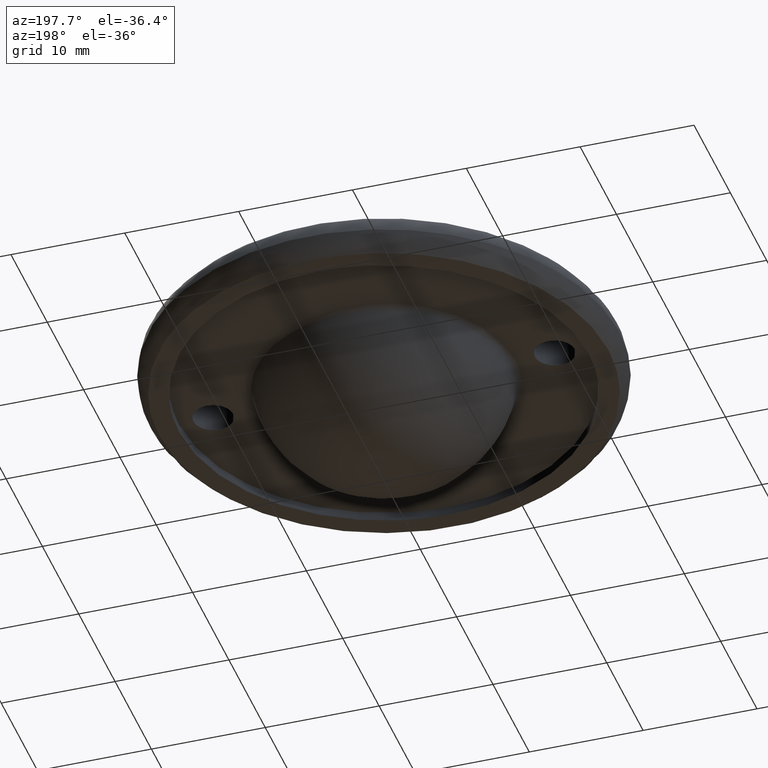
[diagram: clean part render]
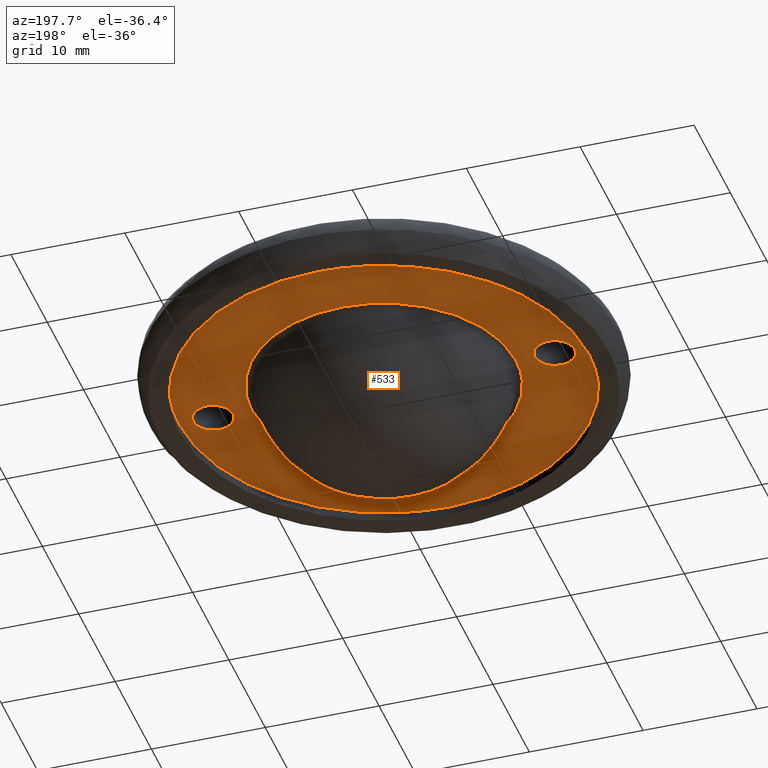
[diagram: same view with one face highlighted and labeled with its STEP entity id]
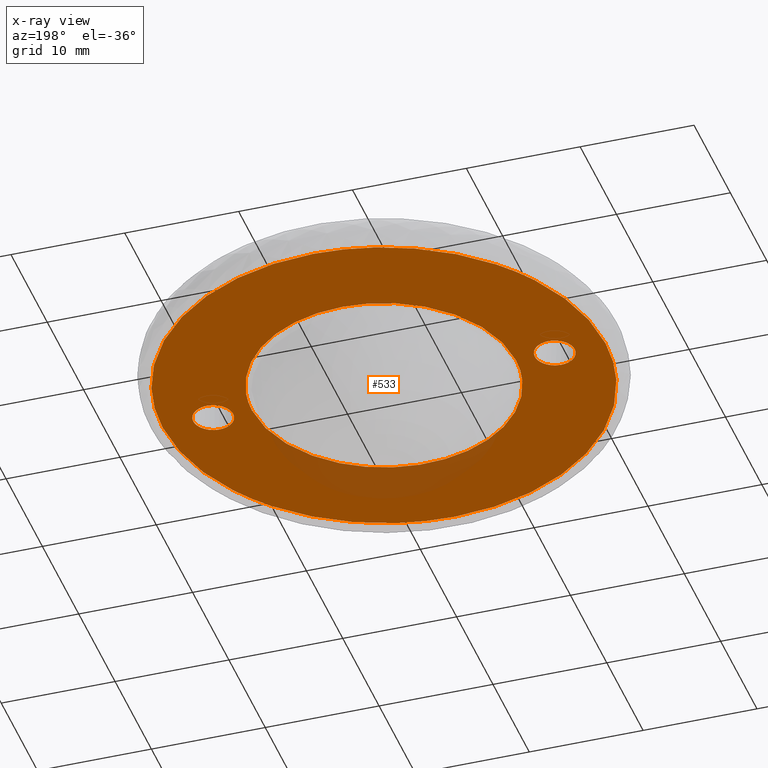
[diagram: x-ray of the same camera — body ghosted, the highlighted face saturated]
A machine part, auxiliary view. The second image highlights one B-rep face of the part: STEP entity #533.
The next image is the same camera in x-ray: the body ghosted, the highlighted face saturated — about 9% of this face is hidden behind the body in this view.
In plain terms, the highlighted face is a freeform B-spline surface patch.
Its self-contained STEP definition (entity closure, byte-faithful):
#136=CARTESIAN_POINT('',(11.267688184956871,-2.742599757114673,0.800000000000000));
#137=VERTEX_POINT('',#136);
#148=CARTESIAN_POINT('',(-11.596665494977840,0.0,0.800000000000000));
#149=VERTEX_POINT('',#148);
#150=CARTESIAN_POINT('',(11.267688184956871,-2.742599757114673,0.800000000000000));
#151=CARTESIAN_POINT('',(11.112248492341751,-3.381445969887310,0.800000000000000));
#152=CARTESIAN_POINT('',(10.741247187765630,-4.486584162898901,0.799999999999997));
#153=CARTESIAN_POINT('',(10.049455958956480,-5.834888732720091,0.800000000000005));
#154=CARTESIAN_POINT('',(9.238286050969169,-7.060696480605282,0.799999999999995));
#155=CARTESIAN_POINT('',(8.250229157700595,-8.211778813633607,0.799999999999999));
#156=CARTESIAN_POINT('',(6.951927979301177,-9.330441996577619,0.800000000000003));
#157=CARTESIAN_POINT('',(5.490127025447241,-10.266341338136661,0.800000000000003));
#158=CARTESIAN_POINT('',(3.881223760624133,-10.977906943386859,0.799999999999997));
#159=CARTESIAN_POINT('',(2.352328845019625,-11.385370598962860,0.800000000000006));
#160=CARTESIAN_POINT('',(1.026714308146248,-11.570246196785810,0.799999999999985));
#161=CARTESIAN_POINT('',(-0.135453233945206,-11.616019219747670,0.800000000000027));
#162=CARTESIAN_POINT('',(-1.559050666477007,-11.526700584526569,0.799999999999987));
#163=CARTESIAN_POINT('',(-3.176765644966813,-11.205662199319461,0.799999999999996));
#164=CARTESIAN_POINT('',(-4.844956211138731,-10.582468399470059,0.800000000000002));
#165=CARTESIAN_POINT('',(-6.383022327875375,-9.732380671445867,0.799999999999999));
#166=CARTESIAN_POINT('',(-7.885584049766017,-8.584682082746635,0.800000000000000));
#167=CARTESIAN_POINT('',(-9.106629202886268,-7.254716844804547,0.800000000000000));
#168=CARTESIAN_POINT('',(-9.948782102046261,-5.995753651517820,0.800000000000001));
#169=CARTESIAN_POINT('',(-10.527372103306330,-4.912135083802987,0.800000000000002));
#170=CARTESIAN_POINT('',(-10.951373721718090,-3.875812777944391,0.799999999999986));
#171=CARTESIAN_POINT('',(-11.440851123940019,-2.213428363868307,0.800000000000029));
#172=CARTESIAN_POINT('',(-11.596921771477611,-0.942417473568141,0.800000000000007));
#173=CARTESIAN_POINT('',(-11.596665494977840,0.0,0.800000000000000));
#174=B_SPLINE_CURVE_WITH_KNOTS('',3,(#150,#151,#152,#153,#154,#155,#156,#157,#158,#159,#160,#161,#162,#163,#164,#165,#166,#167,#168,#169,#170,#171,#172,#173),.UNSPECIFIED.,.F.,.U.,(4,1,1,1,1,1,1,1,1,1,1,1,1,1,1,1,1,1,1,1,1,4),(0.000000080051386,1.972447380855684,3.484643062393829,4.536624168183064,6.377598400557055,8.021311448885250,9.665027405255646,11.571732624307510,13.281213617543051,14.398937076779770,15.582406434931920,16.765887572353730,18.672558644462121,20.513513887869721,22.091476754289690,23.932433592227859,26.167893045869821,27.482861541426661,28.469101292874701,29.849808886476541,30.836051918699170,33.663212273692949),.UNSPECIFIED.);
#175=EDGE_CURVE('',#137,#149,#174,.T.);
#177=CARTESIAN_POINT('',(-11.267688184956871,2.742599757114676,0.800000000000000));
#178=VERTEX_POINT('',#177);
#179=CARTESIAN_POINT('',(-11.596665494977840,0.0,0.800000000000000));
#180=CARTESIAN_POINT('',(-11.596758917441310,0.922952473692589,0.799999999999998));
#181=CARTESIAN_POINT('',(-11.486121971228950,1.845860284297700,0.800000000000001));
#182=CARTESIAN_POINT('',(-11.267688184956871,2.742599757114676,0.800000000000000));
#183=B_SPLINE_CURVE_WITH_KNOTS('',3,(#179,#180,#181,#182),.UNSPECIFIED.,.F.,.U.,(4,4),(7.651138E-010,2.768838355447540),.UNSPECIFIED.);
#184=EDGE_CURVE('',#149,#178,#183,.T.);
#232=CARTESIAN_POINT('',(11.596665494977840,0.0,0.800000000000000));
#233=VERTEX_POINT('',#232);
#234=CARTESIAN_POINT('',(-11.267688184956871,2.742599757114676,0.800000000000000));
#235=CARTESIAN_POINT('',(-11.117425790407029,3.360141394025577,0.799999999999999));
#236=CARTESIAN_POINT('',(-10.749663549196571,4.466069297660289,0.800000000000001));
#237=CARTESIAN_POINT('',(-10.051600861857940,5.836167740597501,0.800000000000005));
#238=CARTESIAN_POINT('',(-9.321936092482066,6.931967277885200,0.799999999999992));
#239=CARTESIAN_POINT('',(-8.428385448142295,8.015796709920750,0.800000000000002));
#240=CARTESIAN_POINT('',(-7.106963055721247,9.242144811809867,0.799999999999998));
#241=CARTESIAN_POINT('',(-5.381980157941297,10.346580141489010,0.800000000000015));
#242=CARTESIAN_POINT('',(-3.588164947602236,11.073815991673230,0.799999999999974));
#243=CARTESIAN_POINT('',(-2.092999864688739,11.431690896309799,0.800000000000007));
#244=CARTESIAN_POINT('',(-0.503084666142127,11.626019263661110,0.799999999999989));
#245=CARTESIAN_POINT('',(1.235513949701093,11.590972879879910,0.800000000000040));
#246=CARTESIAN_POINT('',(3.004196047945836,11.239870516653831,0.799999999999982));
#247=CARTESIAN_POINT('',(4.662790490986287,10.662831991946090,0.800000000000012));
#248=CARTESIAN_POINT('',(6.087795399487681,9.922050232079256,0.799999999999997));
#249=CARTESIAN_POINT('',(7.489872384302782,8.900503177571268,0.800000000000001));
#250=CARTESIAN_POINT('',(8.598819588791349,7.834382563625780,0.800000000000001));
#251=CARTESIAN_POINT('',(9.661128464545163,6.490812096270822,0.800000000000001));
#252=CARTESIAN_POINT('',(10.439269837559040,5.136813413413643,0.800000000000000));
#253=CARTESIAN_POINT('',(11.053931479036381,3.609771964269013,0.799999999999998));
#254=CARTESIAN_POINT('',(11.481005138053559,1.972431468687135,0.800000000000020));
#255=CARTESIAN_POINT('',(11.596733105224031,0.701317971787931,0.799999999999931));
#256=CARTESIAN_POINT('',(11.596665494977840,0.0,0.800000000000000));
#257=B_SPLINE_CURVE_WITH_KNOTS('',3,(#234,#235,#236,#237,#238,#239,#240,#241,#242,#243,#244,#245,#246,#247,#248,#249,#250,#251,#252,#253,#254,#255,#256),.UNSPECIFIED.,.F.,.U.,(4,1,1,1,1,1,1,1,1,1,1,1,1,1,1,1,1,1,1,1,4),(0.000000080051663,1.906672830287072,3.484643062393268,4.602383427606995,5.851611709778535,7.692567736422731,9.993768260078461,11.966232531355439,13.478460664467439,14.596183505841120,16.765887572352138,18.672558644460459,19.987528689709549,22.025717767077829,23.472196533849939,25.181661202057001,26.628128702097090,28.600593351573028,29.849808886476492,31.559263782510548,33.663212273692977),.UNSPECIFIED.);
#258=EDGE_CURVE('',#178,#233,#257,.T.);
#260=CARTESIAN_POINT('',(11.596665494977840,0.0,0.800000000000000));
#261=CARTESIAN_POINT('',(11.596754837340610,-0.922952478419905,0.800000000000000));
#262=CARTESIAN_POINT('',(11.486127385504259,-1.845860076243724,0.800000000000001));
#263=CARTESIAN_POINT('',(11.267688184956871,-2.742599757114673,0.800000000000000));
#264=B_SPLINE_CURVE_WITH_KNOTS('',3,(#260,#261,#262,#263),.UNSPECIFIED.,.F.,.U.,(4,4),(7.650174E-010,2.768838355447538),.UNSPECIFIED.);
#265=EDGE_CURVE('',#233,#137,#264,.T.);
#271=CARTESIAN_POINT('',(21.407060906250440,-21.407060906250418,0.800000000000000));
#272=CARTESIAN_POINT('',(-21.407061950312841,-21.407060906250418,0.800000000000000));
#273=CARTESIAN_POINT('',(21.407060906250440,21.407061950312819,0.800000000000000));
#274=CARTESIAN_POINT('',(-21.407061950312841,21.407061950312819,0.800000000000000));
#275=B_SPLINE_SURFACE_WITH_KNOTS('',1,1,((#271,#273),(#272,#274)),.UNSPECIFIED.,.F.,.F.,.U.,(2,2),(2,2),(0.0,42.814122856563280),(0.0,42.814122856563252),.UNSPECIFIED.);
#276=CARTESIAN_POINT('',(-19.462733868256699,0.0,0.800000000000000));
#277=VERTEX_POINT('',#276);
#278=CARTESIAN_POINT('',(-14.117768219263500,13.397261776138860,0.800000000003066));
#279=VERTEX_POINT('',#278);
#280=CARTESIAN_POINT('',(-19.462733868256699,0.0,0.800000000000000));
#281=CARTESIAN_POINT('',(-19.462777209063020,0.923530993554935,0.800000000000210));
#282=CARTESIAN_POINT('',(-19.363941431147300,2.308810455355918,0.800000000000528));
#283=CARTESIAN_POINT('',(-18.975457257358180,4.468931619584362,0.800000000001023));
#284=CARTESIAN_POINT('',(-18.481983096943381,6.212527045208513,0.800000000001423));
#285=CARTESIAN_POINT('',(-17.739850434165739,8.072654507711784,0.800000000001845));
#286=CARTESIAN_POINT('',(-16.847239107297451,9.823211266045684,0.800000000002254));
#287=CARTESIAN_POINT('',(-15.640750207071511,11.659582255019410,0.800000000002663));
#288=CARTESIAN_POINT('',(-14.647544639642749,12.839021240920520,0.800000000002943));
#289=CARTESIAN_POINT('',(-14.117768219263500,13.397261776138860,0.800000000003066));
#290=B_SPLINE_CURVE_WITH_KNOTS('',3,(#280,#281,#282,#283,#284,#285,#286,#287,#288,#289),.UNSPECIFIED.,.F.,.U.,(4,1,1,1,1,1,1,4),(4.645193E-009,2.770588507161037,4.155887450893658,6.580155285196819,8.196328546753078,10.158830418493620,12.467659815715249,14.776483827311161),.UNSPECIFIED.);
#291=EDGE_CURVE('',#277,#279,#290,.T.);
#292=ORIENTED_EDGE('',*,*,#291,.T.);
#293=CARTESIAN_POINT('',(0.000000723947979,19.462733868256691,0.800000000000000));
#294=VERTEX_POINT('',#293);
#295=CARTESIAN_POINT('',(-14.117768219263500,13.397261776138860,0.800000000003066));
#296=CARTESIAN_POINT('',(-13.325024059529250,14.232793262436010,0.800000000002896));
#297=CARTESIAN_POINT('',(-11.807366663205080,15.571210124711101,0.800000000002562));
#298=CARTESIAN_POINT('',(-9.200084210443604,17.233149143765871,0.800000000001998));
#299=CARTESIAN_POINT('',(-6.861906791695517,18.273010773817241,0.800000000001493));
#300=CARTESIAN_POINT('',(-4.414192697635750,18.999381190379712,0.800000000000960));
#301=CARTESIAN_POINT('',(-2.262380010376466,19.378423401008980,0.800000000000493));
#302=CARTESIAN_POINT('',(-0.699278577927698,19.462744159271789,0.800000000000146));
#303=CARTESIAN_POINT('',(0.000000723947979,19.462733868256691,0.800000000000000));
#304=B_SPLINE_CURVE_WITH_KNOTS('',3,(#295,#296,#297,#298,#299,#300,#301,#302,#303),.UNSPECIFIED.,.F.,.U.,(4,1,1,1,1,1,4),(3.738451E-009,3.455276450489064,6.046742164047913,9.255208237867617,11.106247880486340,13.697714106534150,15.795555742761740),.UNSPECIFIED.);
#305=EDGE_CURVE('',#279,#294,#304,.T.);
#306=ORIENTED_EDGE('',*,*,#305,.T.);
#307=CARTESIAN_POINT('',(19.462733868256699,0.0,0.800000000000000));
#308=VERTEX_POINT('',#307);
#309=CARTESIAN_POINT('',(0.000000723947979,19.462733868256691,0.800000000000000));
#310=CARTESIAN_POINT('',(1.114606324708212,19.462816726786912,0.800000000000000));
#311=CARTESIAN_POINT('',(2.866090146232754,19.311857108848638,0.799999999999999));
#312=CARTESIAN_POINT('',(5.199294333822421,18.787860957389690,0.800000000000003));
#313=CARTESIAN_POINT('',(7.356417284532988,18.075318521065459,0.799999999999997));
#314=CARTESIAN_POINT('',(9.482701014953420,17.061657619145489,0.800000000000000));
#315=CARTESIAN_POINT('',(11.420935707546789,15.800623281959281,0.799999999999999));
#316=CARTESIAN_POINT('',(13.252073897883040,14.325934517859061,0.800000000000000));
#317=CARTESIAN_POINT('',(14.776278234040589,12.744549234581649,0.800000000000003));
#318=CARTESIAN_POINT('',(16.116358804414261,10.960525752949120,0.799999999999987));
#319=CARTESIAN_POINT('',(17.266344650214201,9.094350152577283,0.800000000000037));
#320=CARTESIAN_POINT('',(18.290232885957838,6.840717698703089,0.799999999999992));
#321=CARTESIAN_POINT('',(19.020003566367560,4.352671212116771,0.799999999999993));
#322=CARTESIAN_POINT('',(19.387921212514691,2.109776785902304,0.800000000000004));
#323=CARTESIAN_POINT('',(19.462745459942841,0.676718807012300,0.800000000000000));
#324=CARTESIAN_POINT('',(19.462733868256699,0.0,0.800000000000000));
#325=B_SPLINE_CURVE_WITH_KNOTS('',3,(#309,#310,#311,#312,#313,#314,#315,#316,#317,#318,#319,#320,#321,#322,#323,#324),.UNSPECIFIED.,.F.,.U.,(4,1,1,1,1,1,1,1,1,1,1,1,1,4),(0.000000012302706,3.343803374949783,5.254561959616996,7.165320466832366,10.150873258505900,12.300479181269930,14.091802297875390,17.196759165892740,18.868667602751149,20.779426014539212,23.764985520653291,26.272852948729280,28.541879216823592,30.572038420194261),.UNSPECIFIED.);
#326=EDGE_CURVE('',#294,#308,#325,.T.);
#327=ORIENTED_EDGE('',*,*,#326,.T.);
#328=CARTESIAN_POINT('',(14.117768219263370,-13.397261776138730,0.800000000003066));
#329=VERTEX_POINT('',#328);
#330=CARTESIAN_POINT('',(19.462733868256699,0.0,0.800000000000000));
#331=CARTESIAN_POINT('',(19.462778579618490,-0.923530821805496,0.800000000000211));
#332=CARTESIAN_POINT('',(19.352960364436619,-2.462731968911517,0.800000000000567));
#333=CARTESIAN_POINT('',(18.938671639178310,-4.619150510000654,0.800000000001054));
#334=CARTESIAN_POINT('',(18.424879010804911,-6.355609564858079,0.800000000001455));
#335=CARTESIAN_POINT('',(17.682783096060462,-8.215751804504386,0.800000000001879));
#336=CARTESIAN_POINT('',(16.840517057600689,-9.820193116663523,0.800000000002253));
#337=CARTESIAN_POINT('',(15.635387210770631,-11.654505736118329,0.800000000002666));
#338=CARTESIAN_POINT('',(14.753516395524040,-12.727385802460420,0.800000000002917));
#339=CARTESIAN_POINT('',(14.117768219263370,-13.397261776138730,0.800000000003066));
#340=B_SPLINE_CURVE_WITH_KNOTS('',3,(#330,#331,#332,#333,#334,#335,#336,#337,#338,#339),.UNSPECIFIED.,.F.,.U.,(4,1,1,1,1,1,1,4),(4.644200E-009,2.770588507160678,4.617653413463589,6.580155285197083,8.196328546753453,10.620596381063320,12.005895324796651,14.776483827311081),.UNSPECIFIED.);
#341=EDGE_CURVE('',#308,#329,#340,.T.);
#342=ORIENTED_EDGE('',*,*,#341,.T.);
#343=CARTESIAN_POINT('',(-0.000000723948708,-19.462733868256681,0.800000000000000));
#344=VERTEX_POINT('',#343);
#345=CARTESIAN_POINT('',(14.117768219263370,-13.397261776138730,0.800000000003066));
#346=CARTESIAN_POINT('',(13.240108615901280,-14.322341147986149,0.800000000002877));
#347=CARTESIAN_POINT('',(11.583368113699560,-15.755570374367711,0.800000000002514));
#348=CARTESIAN_POINT('',(9.221273325678084,-17.188408234193972,0.800000000002002));
#349=CARTESIAN_POINT('',(7.238711917409590,-18.100393055106519,0.800000000001572));
#350=CARTESIAN_POINT('',(5.447810208331852,-18.719579858110770,0.800000000001183));
#351=CARTESIAN_POINT('',(3.002754780532599,-19.295790868177640,0.800000000000654));
#352=CARTESIAN_POINT('',(1.192902052925375,-19.462864251436400,0.800000000000257));
#353=CARTESIAN_POINT('',(-0.000000723948708,-19.462733868256681,0.800000000000000));
#354=B_SPLINE_CURVE_WITH_KNOTS('',3,(#345,#346,#347,#348,#349,#350,#351,#352,#353),.UNSPECIFIED.,.F.,.U.,(4,1,1,1,1,1,4),(3.738256E-009,3.825486092759752,6.540347703668788,8.267977682154680,10.365831080092059,12.216876042408851,15.795555742762410),.UNSPECIFIED.);
#355=EDGE_CURVE('',#329,#344,#354,.T.);
#356=ORIENTED_EDGE('',*,*,#355,.T.);
#357=CARTESIAN_POINT('',(-0.000000723948708,-19.462733868256681,0.800000000000000));
#358=CARTESIAN_POINT('',(-0.796141512694437,-19.462756444052371,0.800000000000001));
#359=CARTESIAN_POINT('',(-2.229195314403920,-19.374679308010609,0.799999999999999));
#360=CARTESIAN_POINT('',(-4.310424902529432,-19.013551909794220,0.799999999999998));
#361=CARTESIAN_POINT('',(-6.229667860847442,-18.476086571250150,0.800000000000006));
#362=CARTESIAN_POINT('',(-8.045454976741864,-17.756387408508960,0.799999999999991));
#363=CARTESIAN_POINT('',(-9.816862792019398,-16.844202813618999,0.800000000000006));
#364=CARTESIAN_POINT('',(-11.654896922708300,-15.648468247020221,0.799999999999994));
#365=CARTESIAN_POINT('',(-13.333960420840629,-14.235646203078220,0.800000000000002));
#366=CARTESIAN_POINT('',(-14.840340909478630,-12.643657246362880,0.800000000000000));
#367=CARTESIAN_POINT('',(-16.251796582447771,-10.812067677770800,0.800000000000000));
#368=CARTESIAN_POINT('',(-17.511655143532739,-8.635095851024721,0.800000000000000));
#369=CARTESIAN_POINT('',(-18.579208453200948,-6.012377427956591,0.800000000000000));
#370=CARTESIAN_POINT('',(-19.287542987641931,-3.184563603173815,0.800000000000000));
#371=CARTESIAN_POINT('',(-19.462813259273400,-1.074796736304379,0.800000000000000));
#372=CARTESIAN_POINT('',(-19.462733868256699,0.0,0.800000000000000));
#373=B_SPLINE_CURVE_WITH_KNOTS('',3,(#357,#358,#359,#360,#361,#362,#363,#364,#365,#366,#367,#368,#369,#370,#371,#372),.UNSPECIFIED.,.F.,.U.,(4,1,1,1,1,1,1,1,1,1,1,1,1,4),(0.000000012309620,2.388424220198743,4.299182744802181,6.329364458028771,8.359542088834029,10.150873258507589,12.300479181270790,14.927771601112550,16.719067931270018,18.868667602751390,21.854228345098431,24.242673835306672,27.347654194451540,30.572038420193842),.UNSPECIFIED.);
#374=EDGE_CURVE('',#344,#277,#373,.T.);
#375=ORIENTED_EDGE('',*,*,#374,.T.);
#376=EDGE_LOOP('',(#292,#306,#327,#342,#356,#375));
#377=FACE_OUTER_BOUND('',#376,.T.);
#378=ORIENTED_EDGE('',*,*,#184,.F.);
#379=ORIENTED_EDGE('',*,*,#175,.F.);
#380=ORIENTED_EDGE('',*,*,#265,.F.);
#381=ORIENTED_EDGE('',*,*,#258,.F.);
#382=EDGE_LOOP('',(#378,#379,#380,#381));
#383=FACE_BOUND('',#382,.T.);
#384=CARTESIAN_POINT('',(-16.750000000000000,0.0,0.800000000000023));
#385=VERTEX_POINT('',#384);
#386=CARTESIAN_POINT('',(-14.999999200706521,-1.749999999999818,0.800000000000023));
#387=VERTEX_POINT('',#386);
#388=CARTESIAN_POINT('',(-16.750000000000000,0.0,0.800000000000023));
#389=CARTESIAN_POINT('',(-16.750018701670029,-0.121696879916773,0.800000000000023));
#390=CARTESIAN_POINT('',(-16.724509358629088,-0.365080010927241,0.800000000000022));
#391=CARTESIAN_POINT('',(-16.611517316266379,-0.714333670390829,0.800000000000023));
#392=CARTESIAN_POINT('',(-16.399980348420961,-1.082570718368216,0.800000000000021));
#393=CARTESIAN_POINT('',(-16.094603060990789,-1.391759254615365,0.800000000000026));
#394=CARTESIAN_POINT('',(-15.733622255013460,-1.602034245437785,0.800000000000017));
#395=CARTESIAN_POINT('',(-15.379391933501861,-1.721480056747923,0.800000000000037));
#396=CARTESIAN_POINT('',(-15.136012223909299,-1.750027535523042,0.800000000000002));
#397=CARTESIAN_POINT('',(-14.999999200706521,-1.749999999999818,0.800000000000023));
#398=B_SPLINE_CURVE_WITH_KNOTS('',3,(#388,#389,#390,#391,#392,#393,#394,#395,#396,#397),.UNSPECIFIED.,.F.,.U.,(4,1,1,1,1,1,1,4),(0.000000069658657,0.365088289084198,0.730179728984572,1.095270157390262,1.632151743631647,2.018731355986328,2.340875019070992,2.748911270536210),.UNSPECIFIED.);
#399=EDGE_CURVE('',#385,#387,#398,.T.);
#400=ORIENTED_EDGE('',*,*,#399,.T.);
#401=CARTESIAN_POINT('',(-13.817716966448820,-1.290235453433746,0.799999999996486));
#402=VERTEX_POINT('',#401);
#403=CARTESIAN_POINT('',(-14.999999200706521,-1.749999999999818,0.800000000000023));
#404=CARTESIAN_POINT('',(-14.878302509640699,-1.750017954257683,0.799999999999659));
#405=CARTESIAN_POINT('',(-14.621394596372120,-1.723096918851144,0.799999999998891));
#406=CARTESIAN_POINT('',(-14.208510570605590,-1.584242467064644,0.799999999997652));
#407=CARTESIAN_POINT('',(-13.947270855807950,-1.409051903137909,0.799999999996875));
#408=CARTESIAN_POINT('',(-13.817716966448820,-1.290235453433746,0.799999999996486));
#409=B_SPLINE_CURVE_WITH_KNOTS('',3,(#403,#404,#405,#406,#407,#408),.UNSPECIFIED.,.F.,.U.,(4,1,1,4),(7.835953E-009,0.365095430119543,0.770756741194465,1.298117009999620),.UNSPECIFIED.);
#410=EDGE_CURVE('',#387,#402,#409,.T.);
#411=ORIENTED_EDGE('',*,*,#410,.T.);
#412=CARTESIAN_POINT('',(-13.250000000000000,0.0,0.800000000000023));
#413=VERTEX_POINT('',#412);
#414=CARTESIAN_POINT('',(-13.817716966448820,-1.290235453433746,0.799999999996486));
#415=CARTESIAN_POINT('',(-13.661583165069271,-1.147401528366910,0.799999999996875));
#416=CARTESIAN_POINT('',(-13.481085451916741,-0.908381797081153,0.799999999997534));
#417=CARTESIAN_POINT('',(-13.294503619161850,-0.460864693205093,0.799999999998758));
#418=CARTESIAN_POINT('',(-13.249875150419490,-0.188927092395688,0.799999999999508));
#419=CARTESIAN_POINT('',(-13.250000000000000,0.0,0.800000000000023));
#420=B_SPLINE_CURVE_WITH_KNOTS('',3,(#414,#415,#416,#417,#418,#419),.UNSPECIFIED.,.F.,.U.,(4,1,1,4),(0.000000020578280,0.634738409883432,0.884089083105223,1.450815117430220),.UNSPECIFIED.);
#421=EDGE_CURVE('',#402,#413,#420,.T.);
#422=ORIENTED_EDGE('',*,*,#421,.T.);
#423=CARTESIAN_POINT('',(-15.000000799293460,1.749999999999818,0.800000000000023));
#424=VERTEX_POINT('',#423);
#425=CARTESIAN_POINT('',(-13.250000000000000,0.0,0.800000000000023));
#426=CARTESIAN_POINT('',(-13.249813536825130,0.214786444951672,0.800000000000022));
#427=CARTESIAN_POINT('',(-13.315415021424601,0.565413651672214,0.800000000000025));
#428=CARTESIAN_POINT('',(-13.527058260215920,0.967154387083223,0.800000000000021));
#429=CARTESIAN_POINT('',(-13.777742263606861,1.272655913820775,0.800000000000028));
#430=CARTESIAN_POINT('',(-14.085264938501011,1.512641943135021,0.800000000000025));
#431=CARTESIAN_POINT('',(-14.513261990940549,1.702356612804690,0.800000000000021));
#432=CARTESIAN_POINT('',(-14.821028988663690,1.750083482225283,0.800000000000022));
#433=CARTESIAN_POINT('',(-15.000000799293460,1.749999999999818,0.800000000000023));
#434=B_SPLINE_CURVE_WITH_KNOTS('',3,(#425,#426,#427,#428,#429,#430,#431,#432,#433),.UNSPECIFIED.,.F.,.U.,(4,1,1,1,1,1,4),(0.000000069655476,0.644275531181698,1.052321160817071,1.353001001088931,1.825443414089627,2.212019006466936,2.748911270536204),.UNSPECIFIED.);
#435=EDGE_CURVE('',#413,#424,#434,.T.);
#436=ORIENTED_EDGE('',*,*,#435,.T.);
#437=CARTESIAN_POINT('',(-16.182283033551180,1.290235453433741,0.799999999996486));
#438=VERTEX_POINT('',#437);
#439=CARTESIAN_POINT('',(-15.000000799293460,1.749999999999818,0.800000000000023));
#440=CARTESIAN_POINT('',(-15.202853096985370,1.750160802074562,0.799999999999417));
#441=CARTESIAN_POINT('',(-15.513739255463200,1.695295737827853,0.799999999998485));
#442=CARTESIAN_POINT('',(-15.906819580658610,1.509986952885006,0.799999999997312));
#443=CARTESIAN_POINT('',(-16.092571346384659,1.372468168540369,0.799999999996753));
#444=CARTESIAN_POINT('',(-16.182283033551180,1.290235453433741,0.799999999996486));
#445=B_SPLINE_CURVE_WITH_KNOTS('',3,(#439,#440,#441,#442,#443,#444),.UNSPECIFIED.,.F.,.U.,(4,1,1,4),(7.835939E-009,0.608492530861176,0.933021587713118,1.298117009999637),.UNSPECIFIED.);
#446=EDGE_CURVE('',#424,#438,#445,.T.);
#447=ORIENTED_EDGE('',*,*,#446,.T.);
#448=CARTESIAN_POINT('',(-16.182283033551180,1.290235453433741,0.799999999996486));
#449=CARTESIAN_POINT('',(-16.288149203325009,1.193260537698857,0.799999999996752));
#450=CARTESIAN_POINT('',(-16.500571021807652,0.944118445547205,0.799999999997434));
#451=CARTESIAN_POINT('',(-16.703502767729429,0.498723719929055,0.799999999998657));
#452=CARTESIAN_POINT('',(-16.750033087431369,0.158679926559715,0.799999999999587));
#453=CARTESIAN_POINT('',(-16.750000000000000,0.0,0.800000000000023));
#454=B_SPLINE_CURVE_WITH_KNOTS('',3,(#448,#449,#450,#451,#452,#453),.UNSPECIFIED.,.F.,.U.,(4,1,1,4),(0.000000020577473,0.430712590307132,0.974764183382523,1.450815117430232),.UNSPECIFIED.);
#455=EDGE_CURVE('',#438,#385,#454,.T.);
#456=ORIENTED_EDGE('',*,*,#455,.T.);
#457=EDGE_LOOP('',(#400,#411,#422,#436,#447,#456));
#458=FACE_BOUND('',#457,.T.);
#459=CARTESIAN_POINT('',(13.250000000000000,0.0,0.800000000000023));
#460=VERTEX_POINT('',#459);
#461=CARTESIAN_POINT('',(15.000000799293479,-1.749999999999818,0.800000000000023));
#462=VERTEX_POINT('',#461);
#463=CARTESIAN_POINT('',(13.250000000000000,0.0,0.800000000000023));
#464=CARTESIAN_POINT('',(13.249981621688960,-0.121696498544771,0.800000000000023));
#465=CARTESIAN_POINT('',(13.275489337478749,-0.365081757469868,0.800000000000024));
#466=CARTESIAN_POINT('',(13.390697270403241,-0.721186626211912,0.800000000000023));
#467=CARTESIAN_POINT('',(13.604635068702381,-1.088354144642213,0.800000000000022));
#468=CARTESIAN_POINT('',(13.932106664819811,-1.415847102490761,0.800000000000028));
#469=CARTESIAN_POINT('',(14.413103527904291,-1.680578329158326,0.800000000000019));
#470=CARTESIAN_POINT('',(14.785220102679780,-1.750188341851411,0.800000000000024));
#471=CARTESIAN_POINT('',(15.000000799293479,-1.749999999999818,0.800000000000023));
#472=B_SPLINE_CURVE_WITH_KNOTS('',3,(#463,#464,#465,#466,#467,#468,#469,#470,#471),.UNSPECIFIED.,.F.,.U.,(4,1,1,1,1,1,4),(0.000000069656811,0.365088289082541,0.730179728983175,1.116759629050977,1.632151743630970,2.104635583377144,2.748911270536216),.UNSPECIFIED.);
#473=EDGE_CURVE('',#460,#462,#472,.T.);
#474=ORIENTED_EDGE('',*,*,#473,.T.);
#475=CARTESIAN_POINT('',(16.182283033551180,-1.290235453433746,0.799999999996486));
#476=VERTEX_POINT('',#475);
#477=CARTESIAN_POINT('',(15.000000799293479,-1.749999999999818,0.800000000000023));
#478=CARTESIAN_POINT('',(15.202855557088141,-1.750162552088288,0.799999999999412));
#479=CARTESIAN_POINT('',(15.486698908431199,-1.700060457155537,0.799999999998574));
#480=CARTESIAN_POINT('',(15.883231873653550,-1.524256829331919,0.799999999997373));
#481=CARTESIAN_POINT('',(16.072645302077159,-1.390756520680366,0.799999999996821));
#482=CARTESIAN_POINT('',(16.182283033551180,-1.290235453433746,0.799999999996486));
#483=B_SPLINE_CURVE_WITH_KNOTS('',3,(#477,#478,#479,#480,#481,#482),.UNSPECIFIED.,.F.,.U.,(4,1,1,4),(7.835522E-009,0.608492530860963,0.851889169830874,1.298117009999617),.UNSPECIFIED.);
#484=EDGE_CURVE('',#462,#476,#483,.T.);
#485=ORIENTED_EDGE('',*,*,#484,.T.);
#486=CARTESIAN_POINT('',(16.750000000000000,0.0,0.800000000000023));
#487=VERTEX_POINT('',#486);
#488=CARTESIAN_POINT('',(16.182283033551180,-1.290235453433746,0.799999999996486));
#489=CARTESIAN_POINT('',(16.327250443594600,-1.157594766641460,0.799999999996849));
#490=CARTESIAN_POINT('',(16.510428597468682,-0.921466022842252,0.799999999997497));
#491=CARTESIAN_POINT('',(16.703045834388451,-0.475981458268809,0.799999999998717));
#492=CARTESIAN_POINT('',(16.750100309645919,-0.188922454668108,0.799999999999506));
#493=CARTESIAN_POINT('',(16.750000000000000,0.0,0.800000000000023));
#494=B_SPLINE_CURVE_WITH_KNOTS('',3,(#488,#489,#490,#491,#492,#493),.UNSPECIFIED.,.F.,.U.,(4,1,1,4),(0.000000020578013,0.589400713047204,0.884089083105070,1.450815117430229),.UNSPECIFIED.);
#495=EDGE_CURVE('',#476,#487,#494,.T.);
#496=ORIENTED_EDGE('',*,*,#495,.T.);
#497=CARTESIAN_POINT('',(14.999999200706540,1.749999999999818,0.800000000000023));
#498=VERTEX_POINT('',#497);
#499=CARTESIAN_POINT('',(16.750000000000000,0.0,0.800000000000023));
#500=CARTESIAN_POINT('',(16.750057116902170,0.164651574986723,0.800000000000021));
#501=CARTESIAN_POINT('',(16.704205987959039,0.486758297479800,0.800000000000026));
#502=CARTESIAN_POINT('',(16.528573412688822,0.883019394641013,0.800000000000023));
#503=CARTESIAN_POINT('',(16.269474895190811,1.227895590089844,0.800000000000024));
#504=CARTESIAN_POINT('',(15.974794754606020,1.472801024278713,0.800000000000022));
#505=CARTESIAN_POINT('',(15.536760730847609,1.689921376976349,0.800000000000023));
#506=CARTESIAN_POINT('',(15.214793126939000,1.750178885019226,0.800000000000023));
#507=CARTESIAN_POINT('',(14.999999200706540,1.749999999999818,0.800000000000023));
#508=B_SPLINE_CURVE_WITH_KNOTS('',3,(#499,#500,#501,#502,#503,#504,#505,#506,#507),.UNSPECIFIED.,.F.,.U.,(4,1,1,1,1,1,4),(0.000000069658712,0.493940872003677,0.966420146932238,1.288563463501155,1.782491921053464,2.104635583377167,2.748911270536204),.UNSPECIFIED.);
#509=EDGE_CURVE('',#487,#498,#508,.T.);
#510=ORIENTED_EDGE('',*,*,#509,.T.);
#511=CARTESIAN_POINT('',(13.817716966448820,1.290235453433741,0.799999999996486));
#512=VERTEX_POINT('',#511);
#513=CARTESIAN_POINT('',(14.999999200706540,1.749999999999818,0.800000000000023));
#514=CARTESIAN_POINT('',(14.797144664646179,1.750160583982033,0.799999999999421));
#515=CARTESIAN_POINT('',(14.513299161080161,1.700063361538949,0.799999999998558));
#516=CARTESIAN_POINT('',(14.116771981580889,1.524251557105610,0.799999999997390));
#517=CARTESIAN_POINT('',(13.927349905847130,1.390763157314347,0.799999999996807));
#518=CARTESIAN_POINT('',(13.817716966448820,1.290235453433741,0.799999999996486));
#519=B_SPLINE_CURVE_WITH_KNOTS('',3,(#513,#514,#515,#516,#517,#518),.UNSPECIFIED.,.F.,.U.,(4,1,1,4),(7.835989E-009,0.608492530861087,0.851889169830969,1.298117009999638),.UNSPECIFIED.);
#520=EDGE_CURVE('',#498,#512,#519,.T.);
#521=ORIENTED_EDGE('',*,*,#520,.T.);
#522=CARTESIAN_POINT('',(13.817716966448820,1.290235453433741,0.799999999996486));
#523=CARTESIAN_POINT('',(13.661572269452130,1.147415791166765,0.799999999996878));
#524=CARTESIAN_POINT('',(13.453310115899560,0.871595798513621,0.799999999997632));
#525=CARTESIAN_POINT('',(13.283668069134750,0.415576328397477,0.799999999998888));
#526=CARTESIAN_POINT('',(13.249962752148990,0.143573735359806,0.799999999999624));
#527=CARTESIAN_POINT('',(13.250000000000000,0.0,0.800000000000023));
#528=B_SPLINE_CURVE_WITH_KNOTS('',3,(#522,#523,#524,#525,#526,#527),.UNSPECIFIED.,.F.,.U.,(4,1,1,4),(0.000000020577791,0.634738409882970,1.020102547721171,1.450815117430231),.UNSPECIFIED.);
#529=EDGE_CURVE('',#512,#460,#528,.T.);
#530=ORIENTED_EDGE('',*,*,#529,.T.);
#531=EDGE_LOOP('',(#474,#485,#496,#510,#521,#530));
#532=FACE_BOUND('',#531,.T.);
#533=ADVANCED_FACE('',(#377,#383,#458,#532),#275,.T.);